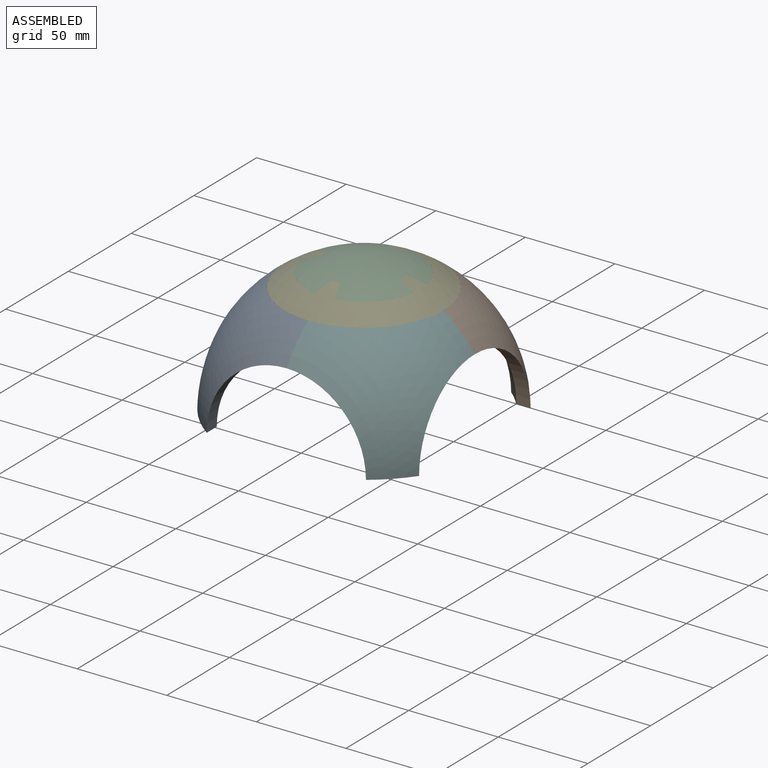
[diagram: assembled view]
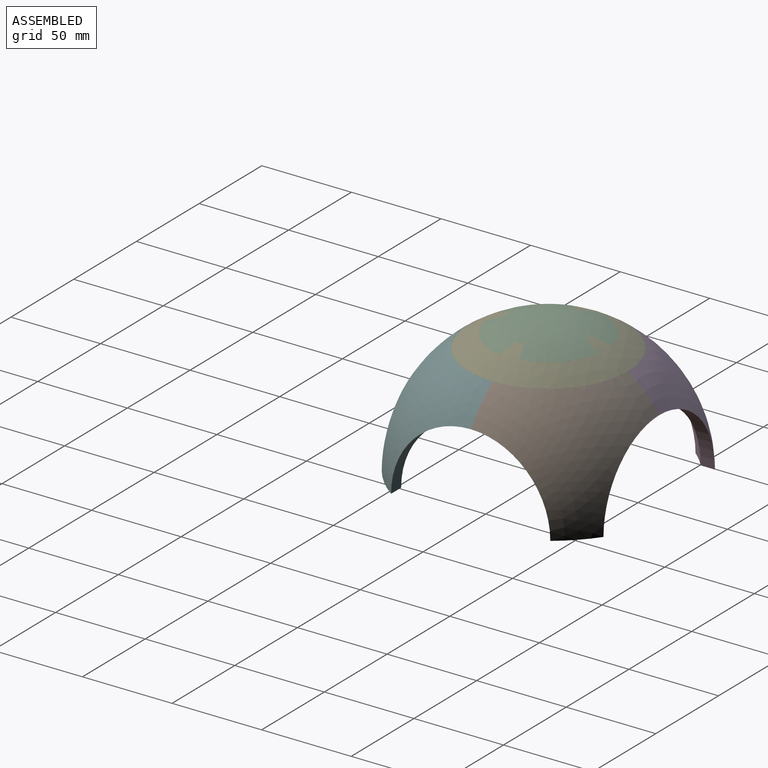
[diagram: assembled view, second angle]
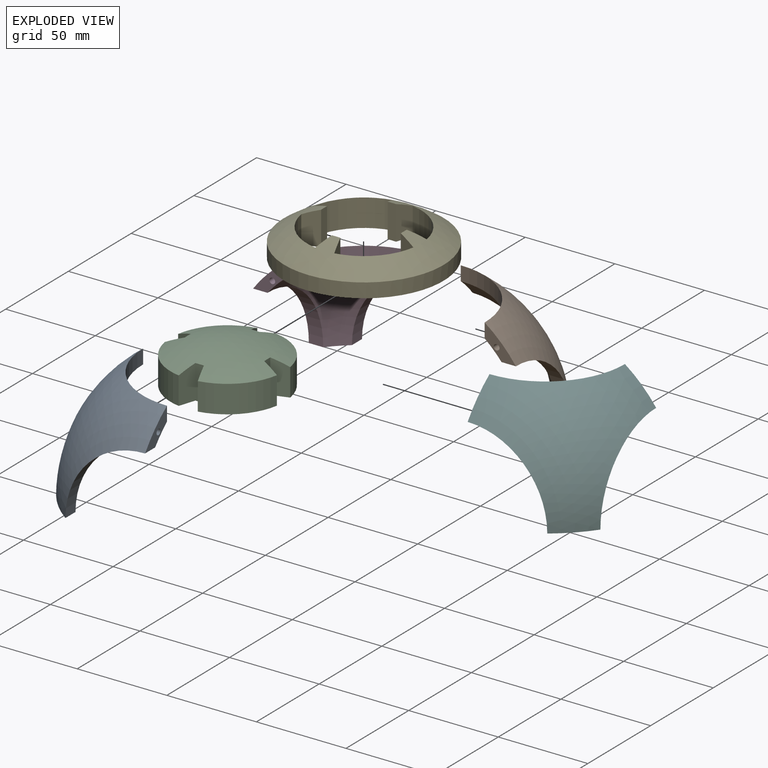
[diagram: exploded view]
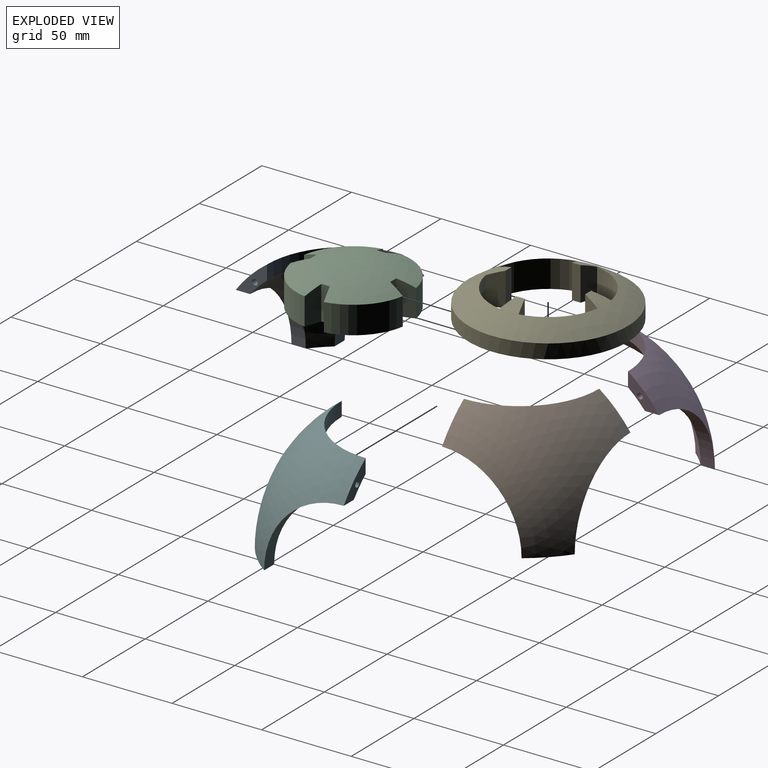
[diagram: exploded view, second angle]
ASSEMBLY  parts=6 mates=5
PART A: 14 faces, bbox 61.9x76.2x76.2 mm
  f0: cylinder r=44.45mm len=44.45mm, axis (-1,0,0), area 559.3mm2, adj f2,f3,f5,f7
  f1: cylinder r=44.45mm len=44.45mm, axis (0,0,-1), area 559.3mm2, adj f2,f3,f6,f7
  f2: sphere r=69.85mm, area 2407.8mm2, adj f0,f1,f4,f5,f6,f7
  f3: sphere r=76.2mm, area 3983mm2, adj f0,f1,f4,f5,f6,f7
  f4: cylinder r=44.45mm len=44.45mm, axis (0,-1,0), area 559.3mm2, adj f2,f3,f5,f6
  f5: plane 17.44x17.44mm, normal (0,0,-1), area 113.4mm2, adj f0,f2,f3,f4,f12
  f6: plane 17.44x17.44mm, normal (-1,0,0), area 113.4mm2, adj f1,f2,f3,f4,f10
  f7: plane 17.44x17.44mm, normal (0,-1,0), area 113.4mm2, adj f0,f1,f2,f3,f8
  f8: cylinder r=1.59mm len=6.35mm, axis (0,-1,0), area 63.3mm2, adj f7,f9
  f9: plane 3.18x3.18mm, normal (0,-1,0), area 7.9mm2, adj f8
  f10: cylinder r=1.59mm len=6.35mm, axis (-1,0,0), area 63.3mm2, adj f6,f11
  f11: plane 3.18x3.18mm, normal (-1,0,0), area 7.9mm2, adj f10
  f12: cylinder r=1.59mm len=6.35mm, axis (0,0,-1), area 63.3mm2, adj f5,f13
  f13: plane 3.18x3.18mm, normal (0,0,-1), area 7.9mm2, adj f12
PART B: same geometry as A
PART C: 18 faces, bbox 62.6x22.3x62.8 mm
  f0: plane 62.6x62.6mm, normal (0,1,0), area 2874.2mm2, adj f1,f2,f3,f4,f5,f6,f7,f8
  f1: plane 18.95x9.07mm, normal (-0.95,0,0.31), area 164.9mm2, adj f0,f2,f16,f17
  f2: plane 18.99x4.76mm, normal (0,0,1), area 90.4mm2, adj f0,f1,f3,f17
  f3: plane 18.95x9.07mm, normal (0.95,0,0.31), area 164.9mm2, adj f0,f2,f4,f17
  f4: cylinder r=31.75mm len=25.97mm, axis (0,1,0), area 602mm2, adj f0,f3,f5,f17
  f5: plane 18.95x9.07mm, normal (-0.31,0,-0.95), area 164.9mm2, adj f0,f4,f6,f17
  f6: plane 18.99x4.76mm, normal (-1,0,0), area 90.4mm2, adj f0,f5,f7,f17
  f7: plane 18.95x9.07mm, normal (-0.31,0,0.95), area 164.9mm2, adj f0,f6,f8,f17
  f8: cylinder r=31.75mm len=25.97mm, axis (0,1,0), area 602mm2, adj f0,f7,f9,f17
  f9: plane 18.95x9.07mm, normal (0.95,0,-0.31), area 164.9mm2, adj f0,f8,f10,f17
  f10: plane 18.99x4.76mm, normal (0,0,-1), area 90.4mm2, adj f0,f9,f11,f17
  f11: plane 18.95x9.07mm, normal (-0.95,0,-0.31), area 164.9mm2, adj f0,f10,f12,f17
  f12: cylinder r=31.75mm len=25.97mm, axis (0,1,0), area 602mm2, adj f0,f11,f13,f17
  f13: plane 18.95x9.07mm, normal (0.31,0,0.95), area 164.9mm2, adj f0,f12,f14,f17
  f14: plane 18.99x4.76mm, normal (1,0,0), area 90.4mm2, adj f0,f13,f15,f17
  f15: plane 18.95x9.07mm, normal (0.31,0,-0.95), area 164.9mm2, adj f0,f14,f16,f17
  f16: cylinder r=31.75mm len=25.97mm, axis (0,1,0), area 602mm2, adj f0,f1,f15,f17
  f17: sphere r=76.2mm, area 3003.4mm2, adj f1,f2,f3,f4,f5,f6,f7,f8
PART D: same geometry as A
PART E: 19 faces, bbox 89.2x26.2x89.3 mm
  f0: cylinder r=44.45mm len=88.9mm, axis (0,1,0), area 2232.4mm2, adj f1,f2
  f1: sphere r=76.2mm, area 3846.6mm2, adj f0,f3,f4,f5,f6,f7,f8,f9
  f2: plane 88.9x88.9mm, normal (0,1,0), area 3333mm2, adj f0,f3,f4,f5,f6,f7,f8,f9
  f3: plane 18.99x4.76mm, normal (0,0,-1), area 90.4mm2, adj f1,f2,f4,f18
  f4: plane 18.95x9.07mm, normal (0.95,0,-0.31), area 164.9mm2, adj f1,f2,f3,f5
  f5: cylinder r=31.75mm len=25.97mm, axis (0,1,0), area 602mm2, adj f1,f2,f4,f6
  f6: plane 18.95x9.07mm, normal (-0.31,0,0.95), area 164.9mm2, adj f1,f2,f5,f7
  f7: plane 18.99x4.76mm, normal (-1,0,0), area 90.4mm2, adj f1,f2,f6,f8
  f8: plane 18.95x9.07mm, normal (-0.31,0,-0.95), area 164.9mm2, adj f1,f2,f7,f9
  f9: cylinder r=31.75mm len=25.97mm, axis (0,1,0), area 602mm2, adj f1,f2,f8,f10
  f10: plane 18.95x9.07mm, normal (0.95,0,0.31), area 164.9mm2, adj f1,f2,f9,f11
  f11: plane 18.99x4.76mm, normal (0,0,1), area 90.4mm2, adj f1,f2,f10,f12
  f12: plane 18.95x9.07mm, normal (-0.95,0,0.31), area 164.9mm2, adj f1,f2,f11,f13
  f13: cylinder r=31.75mm len=25.97mm, axis (0,1,0), area 602mm2, adj f1,f2,f12,f14
  f14: plane 18.95x9.07mm, normal (0.31,0,-0.95), area 164.9mm2, adj f1,f2,f13,f15
  f15: plane 18.99x4.76mm, normal (1,0,0), area 90.4mm2, adj f1,f2,f14,f16
  f16: plane 18.95x9.07mm, normal (0.31,0,0.95), area 164.9mm2, adj f1,f2,f15,f17
  f17: cylinder r=31.75mm len=25.97mm, axis (0,1,0), area 602mm2, adj f1,f2,f16,f18
  f18: plane 18.95x9.07mm, normal (-0.95,0,-0.31), area 164.9mm2, adj f1,f2,f3,f17
PART F: same geometry as A
PLACE A rot(axis=(0.58,-0.58,-0.58),120deg) t=(0,0,0)mm
PLACE B at identity fixed
PLACE C rot(axis=(-1,0,0),90deg) t=(0,0,-0.01)mm
PLACE D rot(axis=(0,0,1),90deg) t=(0,0,0)mm
PLACE E rot(axis=(0,-0.71,0.71),180deg) t=(0,0,-0.01)mm
PLACE F rot(axis=(0,0,-1),90deg) t=(0,0,0)mm
MATE fastened E.f0 <-> D.f1  axis (0,0,-1) through (0,0,53.89)mm
MATE fastened B.f6 <-> D.f7  axis (-1,0,0) through (0,51.74,51.74)mm
MATE fastened F.f7 <-> A.f5  axis (-1,0,0) through (0,-51.74,51.74)mm
MATE fastened C.f2 <-> E.f11  axis (0,1,0) through (2.38,22.22,72.84)mm
MATE fastened A.f6 <-> D.f6  axis (0,1,0) through (-51.74,0,51.74)mm
